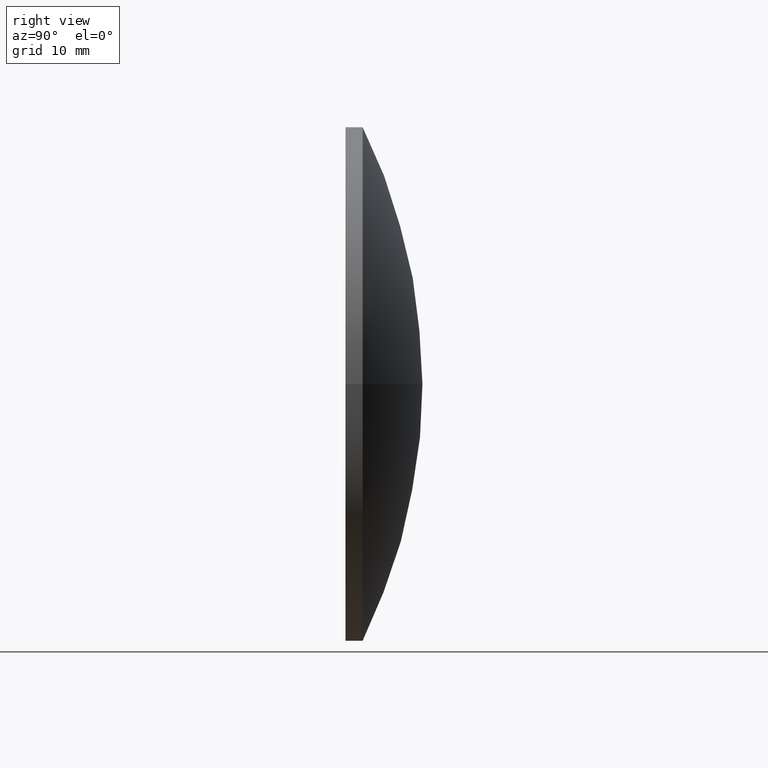
[diagram: clean part render]
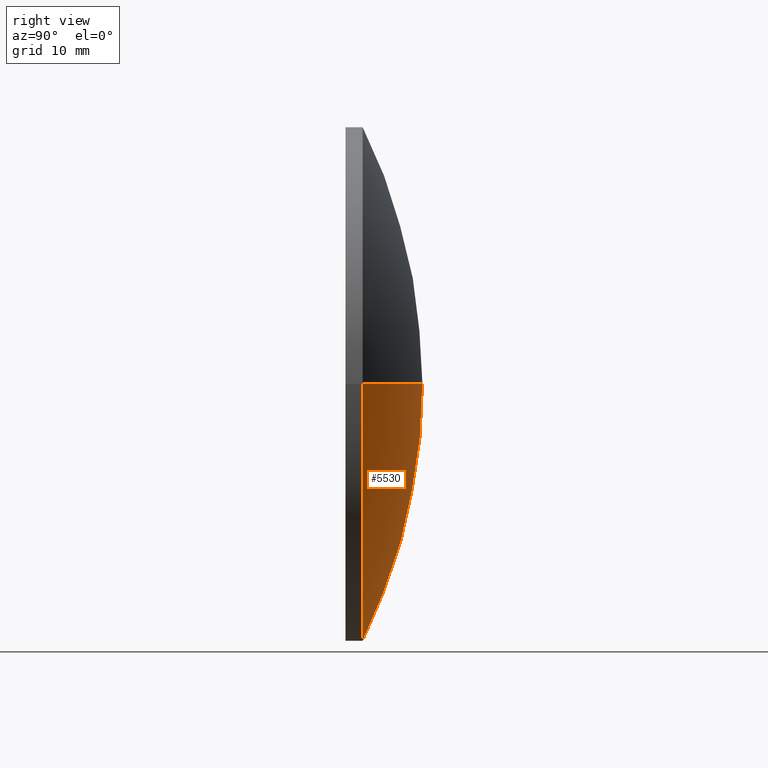
[diagram: same view with one face highlighted and labeled with its STEP entity id]
A machine part, right view. The second image highlights one B-rep face of the part: STEP entity #5530.
In plain terms, the highlighted spherical surface has radius 68.4302 mm.
Its self-contained STEP definition (entity closure, byte-faithful):
#631 = CIRCLE ( 'NONE', #7043, 68.43017857142852700 ) ;
#977 = CIRCLE ( 'NONE', #8888, 30.15000000000005200 ) ;
#1678 = CARTESIAN_POINT ( 'NONE',  ( 1.851550126366366400E-014, -59.43017857142852700, 0.0000000000000000000 ) ) ;
#1821 = DIRECTION ( 'NONE',  ( 1.000000000000000000, 0.0000000000000000000, -1.224646799147353200E-016 ) ) ;
#1903 = CARTESIAN_POINT ( 'NONE',  ( 1.851550126366366400E-014, -59.43017857142852700, 0.0000000000000000000 ) ) ;
#1905 = CARTESIAN_POINT ( 'NONE',  ( -30.15000000000009800, 2.000000000000553300, 3.692310099429275900E-015 ) ) ;
#1985 = EDGE_LOOP ( 'NONE', ( #12029, #2678, #10447 ) ) ;
#2003 = EDGE_CURVE ( 'NONE', #3768, #9811, #12549, .T. ) ;
#2678 = ORIENTED_EDGE ( 'NONE', *, *, #2003, .T. ) ;
#2786 = FACE_OUTER_BOUND ( 'NONE', #1985, .T. ) ;
#3040 = CARTESIAN_POINT ( 'NONE',  ( 1.851550126366366400E-014, -59.43017857142852700, 0.0000000000000000000 ) ) ;
#3768 = VERTEX_POINT ( 'NONE', #6184 ) ;
#4100 = DIRECTION ( 'NONE',  ( -1.000000000000000000, 0.0000000000000000000, 0.0000000000000000000 ) ) ;
#4177 = DIRECTION ( 'NONE',  ( 1.000000000000000000, -9.263365825282436300E-015, 0.0000000000000000000 ) ) ;
#4591 = CARTESIAN_POINT ( 'NONE',  ( 30.15000000000000600, 1.999999999999994900, 0.0000000000000000000 ) ) ;
#4781 = DIRECTION ( 'NONE',  ( 1.224646799147353200E-016, -1.133747467857722800E-030, 1.000000000000000000 ) ) ;
#4906 = AXIS2_PLACEMENT_3D ( 'NONE', #1678, #5629, #9565 ) ;
#5056 = DIRECTION ( 'NONE',  ( 0.0000000000000000000, 0.0000000000000000000, -1.000000000000000000 ) ) ;
#5530 = ADVANCED_FACE ( 'NONE', ( #2786 ), #5863, .T. ) ;
#5629 = DIRECTION ( 'NONE',  ( -0.0000000000000000000, 0.0000000000000000000, 1.000000000000000000 ) ) ;
#5863 = SPHERICAL_SURFACE ( 'NONE', #4906, 68.43017857142852700 ) ;
#6184 = CARTESIAN_POINT ( 'NONE',  ( 6.562151701272995900E-013, 8.999999999999994700, 0.0000000000000000000 ) ) ;
#7028 = CARTESIAN_POINT ( 'NONE',  ( -4.628875315915650700E-014, 2.000000000000274000, 0.0000000000000000000 ) ) ;
#7043 = AXIS2_PLACEMENT_3D ( 'NONE', #1903, #4781, #1821 ) ;
#7046 = EDGE_CURVE ( 'NONE', #3768, #11637, #631, .T. ) ;
#7109 = DIRECTION ( 'NONE',  ( -9.257750631831822700E-015, -1.000000000000000000, -0.0000000000000000000 ) ) ;
#8888 = AXIS2_PLACEMENT_3D ( 'NONE', #7028, #7109, #4177 ) ;
#9565 = DIRECTION ( 'NONE',  ( 1.000000000000000000, -9.227498136607246200E-015, 0.0000000000000000000 ) ) ;
#9811 = VERTEX_POINT ( 'NONE', #4591 ) ;
#10064 = EDGE_CURVE ( 'NONE', #11637, #9811, #977, .T. ) ;
#10447 = ORIENTED_EDGE ( 'NONE', *, *, #10064, .F. ) ;
#11637 = VERTEX_POINT ( 'NONE', #1905 ) ;
#12029 = ORIENTED_EDGE ( 'NONE', *, *, #7046, .F. ) ;
#12304 = AXIS2_PLACEMENT_3D ( 'NONE', #3040, #5056, #4100 ) ;
#12549 = CIRCLE ( 'NONE', #12304, 68.43017857142852700 ) ;